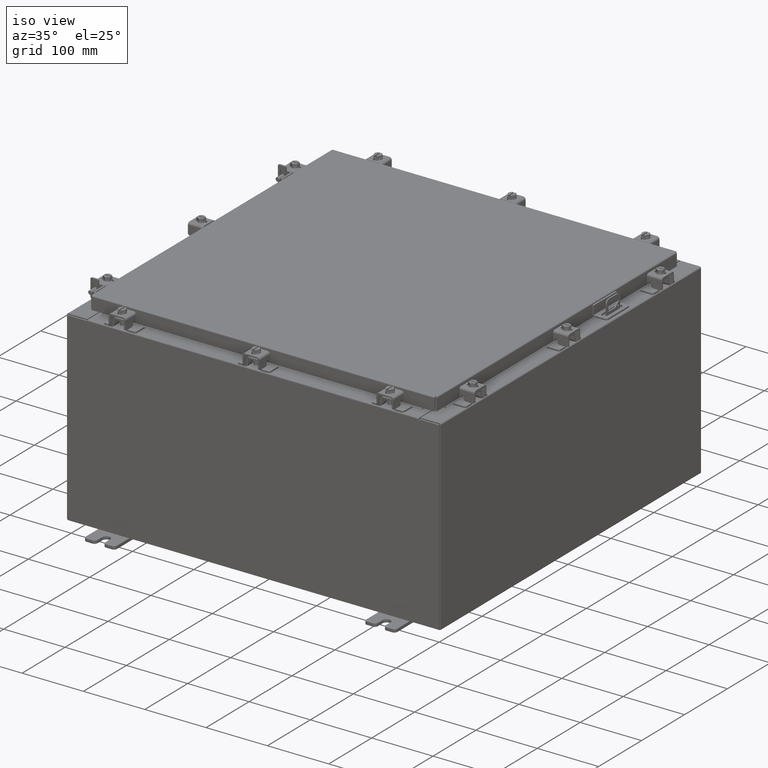
[diagram: clean part render]
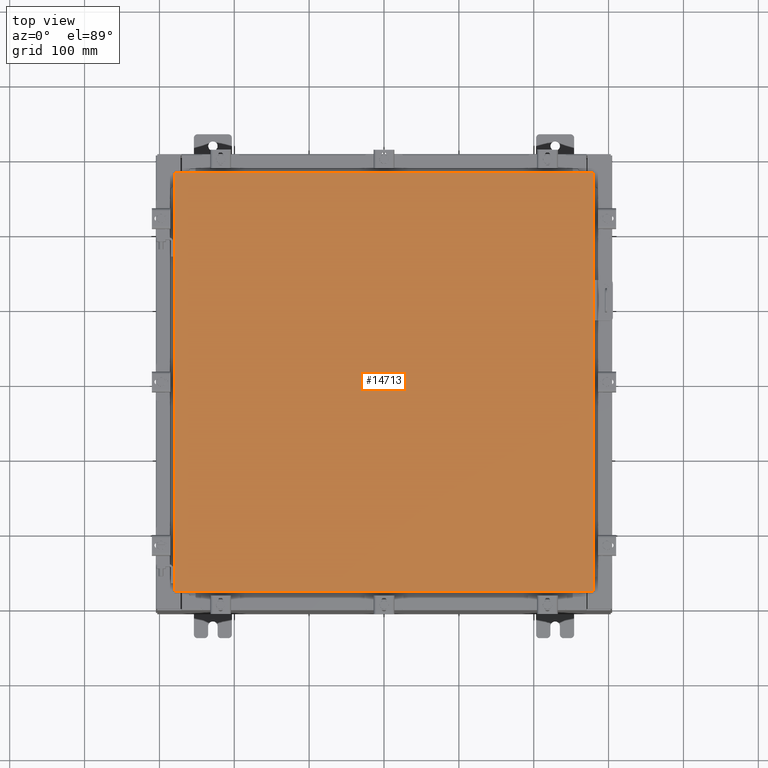
[diagram: tour spotlight — one face highlighted and labeled with its STEP entity id]
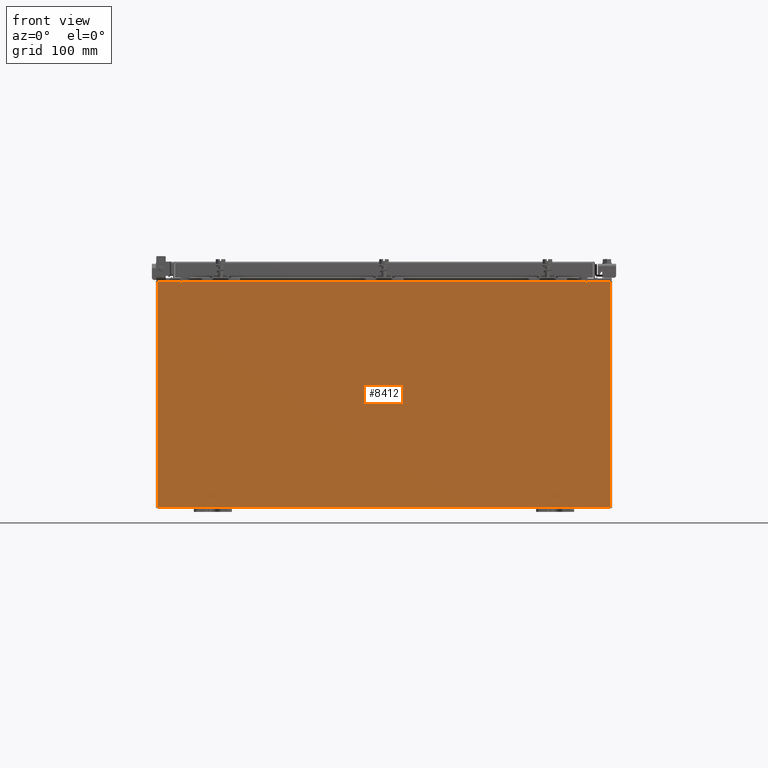
[diagram: tour spotlight — one face highlighted and labeled with its STEP entity id]
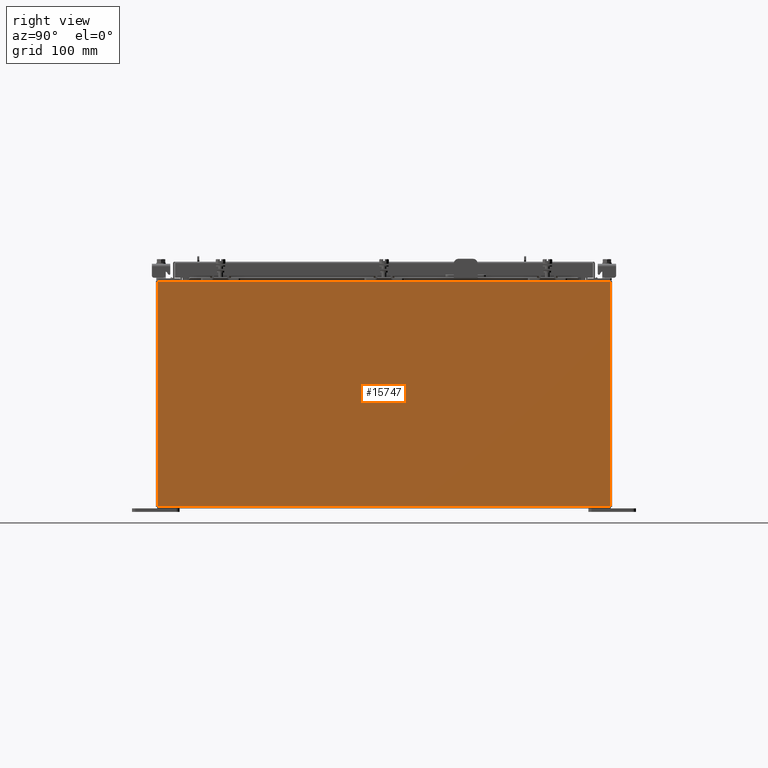
[diagram: tour spotlight — one face highlighted and labeled with its STEP entity id]
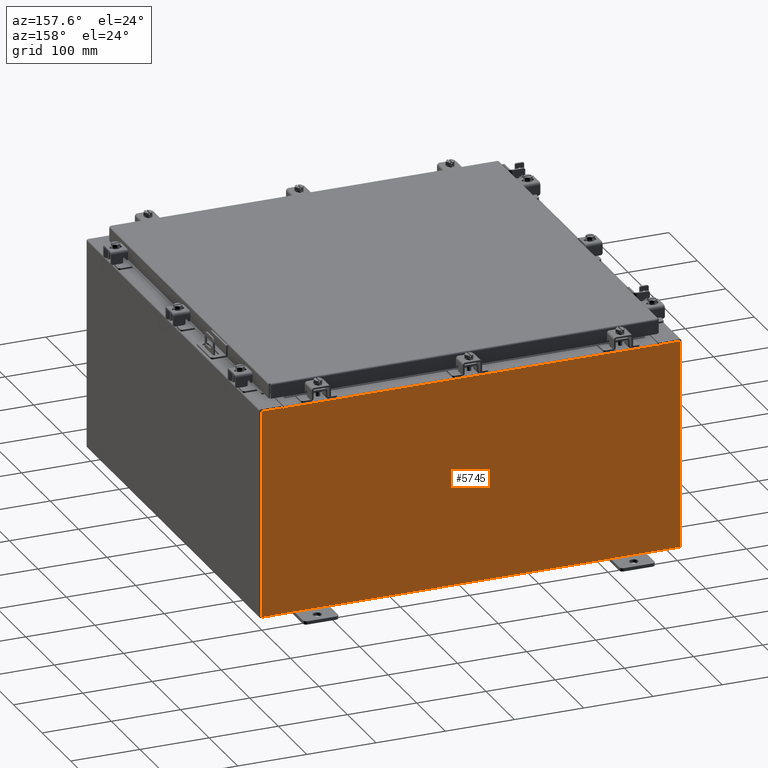
[diagram: tour spotlight — one face highlighted and labeled with its STEP entity id]
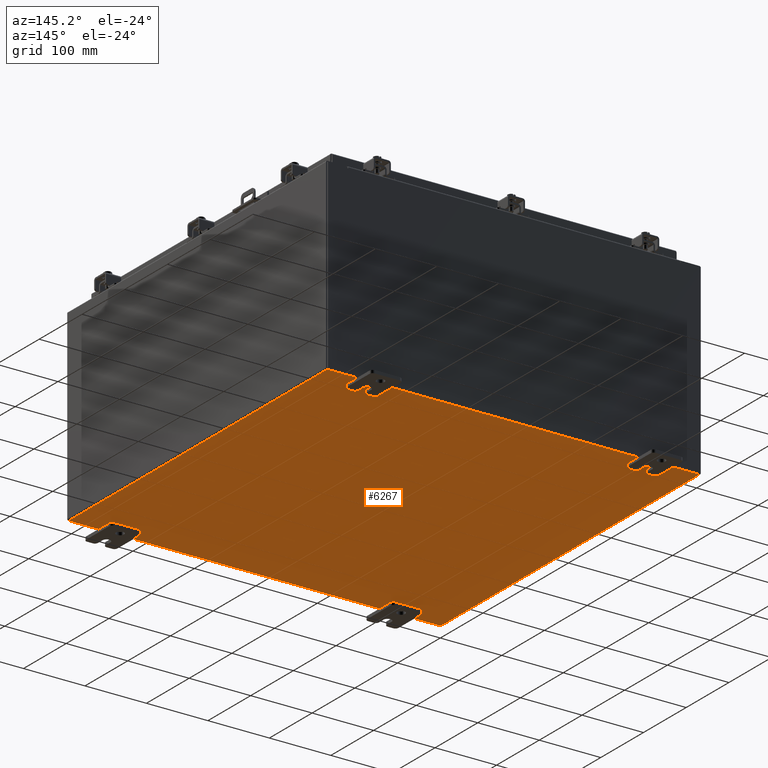
[diagram: tour spotlight — one face highlighted and labeled with its STEP entity id]
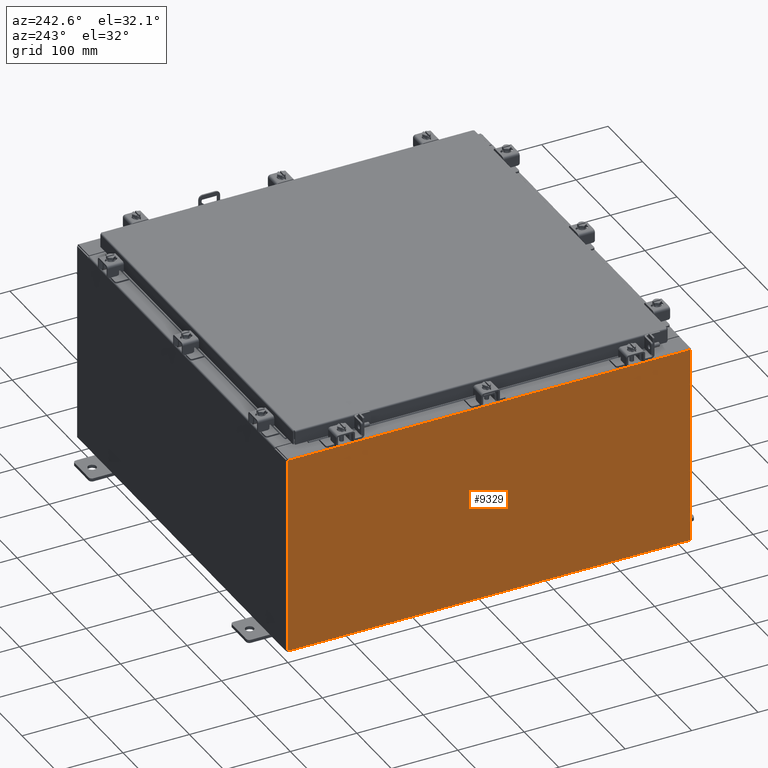
[diagram: tour spotlight — one face highlighted and labeled with its STEP entity id]
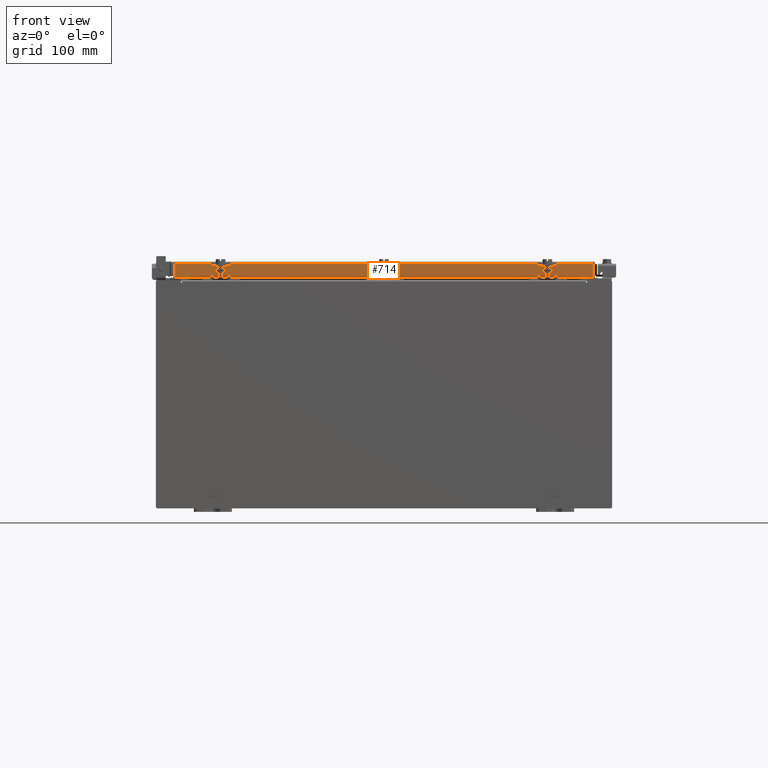
[diagram: tour spotlight — one face highlighted and labeled with its STEP entity id]
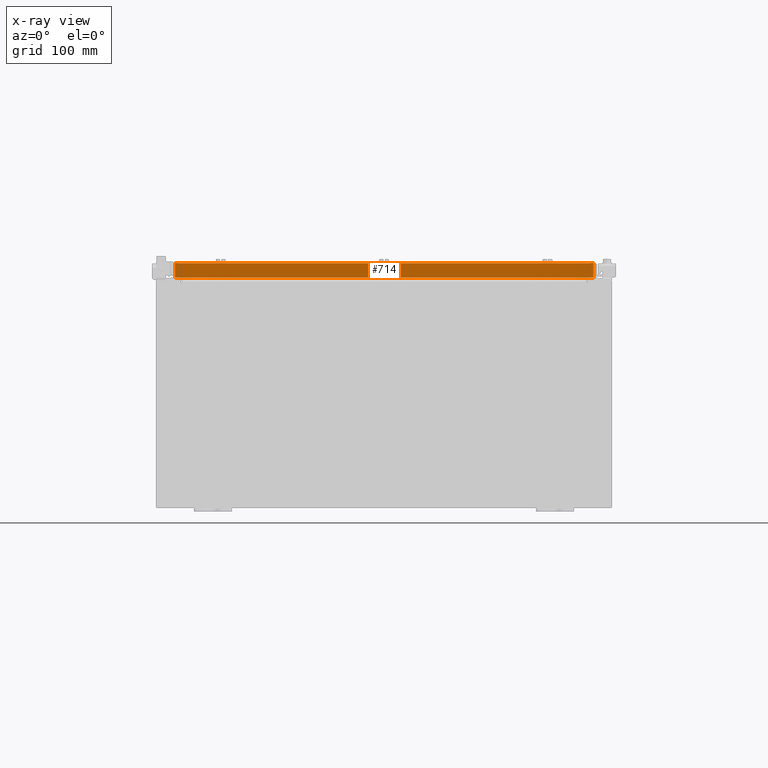
[diagram: x-ray of the same camera — body ghosted, this tour face saturated]
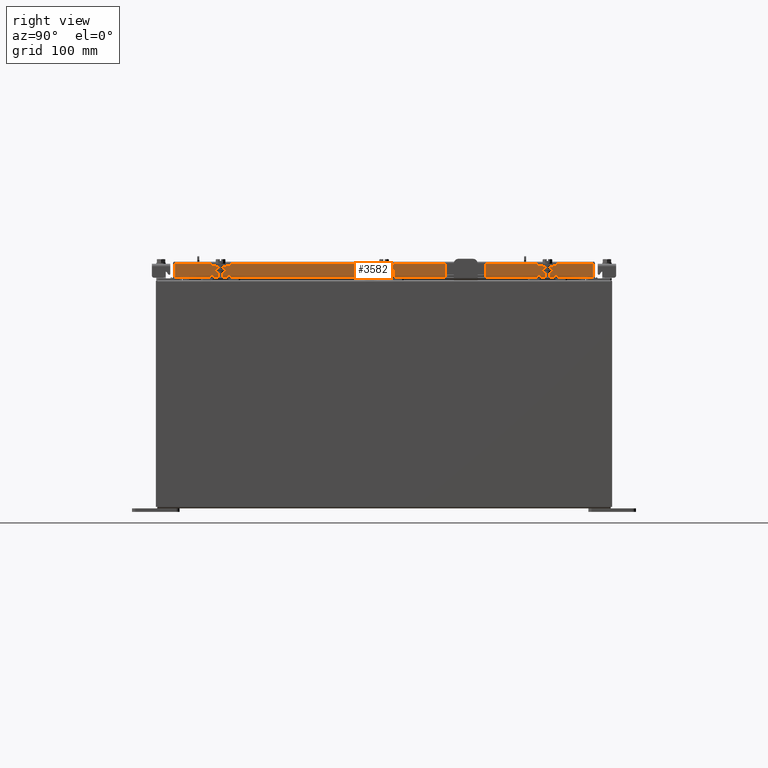
[diagram: tour spotlight — one face highlighted and labeled with its STEP entity id]
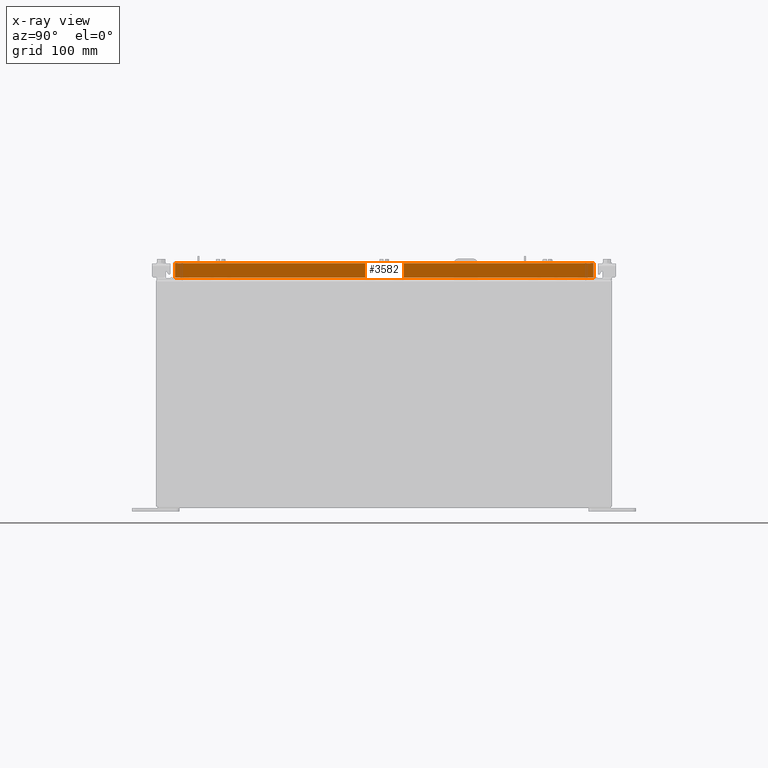
[diagram: x-ray of the same camera — body ghosted, this tour face saturated]
A machine part: a face-by-face anatomy tour. The part has 2018 B-rep faces; the first image is the clean iso view, then the 8 largest visible faces are spotlighted one at a time (largest first), each with its STEP entity span.

Face 1 — top view, entity #14713. In plain terms, the highlighted planar face has unit normal (0, 0, -1).
Definition (entity closure, byte-faithful):
#45 = DIRECTION ( 'NONE',  ( 0.0000000000000000000, 1.000000000000000000, 0.0000000000000000000 ) ) ;
#1031 = DIRECTION ( 'NONE',  ( 0.0000000000000000000, -1.000000000000000000, 0.0000000000000000000 ) ) ;
#1666 = ORIENTED_EDGE ( 'NONE', *, *, #2461, .T. ) ;
#1811 = CARTESIAN_POINT ( 'NONE',  ( 11.00630000000000000, 11.00630000000000000, 0.0000000000000000000 ) ) ;
#2257 = VECTOR ( 'NONE', #13594, 39.37007874015748100 ) ;
#2461 = EDGE_CURVE ( 'NONE', #12385, #13213, #9396, .T. ) ;
#2712 = DIRECTION ( 'NONE',  ( 0.0000000000000000000, 0.0000000000000000000, -1.000000000000000000 ) ) ;
#3831 = EDGE_CURVE ( 'NONE', #13213, #13131, #6925, .T. ) ;
#4807 = VECTOR ( 'NONE', #1031, 39.37007874015748100 ) ;
#5371 = CARTESIAN_POINT ( 'NONE',  ( 11.00630000000000000, -11.00630000000000000, 0.0000000000000000000 ) ) ;
#6925 = LINE ( 'NONE', #20543, #2257 ) ;
#7045 = CARTESIAN_POINT ( 'NONE',  ( -11.00630000000000000, 11.00630000000000000, 0.0000000000000000000 ) ) ;
#7500 = VECTOR ( 'NONE', #12225, 39.37007874015748100 ) ;
#7553 = FACE_OUTER_BOUND ( 'NONE', #9148, .T. ) ;
#7612 = VECTOR ( 'NONE', #45, 39.37007874015748100 ) ;
#7900 = CARTESIAN_POINT ( 'NONE',  ( 0.0000000000000000000, 0.0000000000000000000, 0.0000000000000000000 ) ) ;
#9148 = EDGE_LOOP ( 'NONE', ( #16859, #19043, #18407, #1666 ) ) ;
#9396 = LINE ( 'NONE', #20089, #4807 ) ;
#9687 = CARTESIAN_POINT ( 'NONE',  ( -11.00630000000000000, -11.00630000000000000, 0.0000000000000000000 ) ) ;
#12225 = DIRECTION ( 'NONE',  ( -1.000000000000000000, -0.0000000000000000000, -0.0000000000000000000 ) ) ;
#12385 = VERTEX_POINT ( 'NONE', #7045 ) ;
#13131 = VERTEX_POINT ( 'NONE', #18135 ) ;
#13213 = VERTEX_POINT ( 'NONE', #9687 ) ;
#13594 = DIRECTION ( 'NONE',  ( 1.000000000000000000, -0.0000000000000000000, -0.0000000000000000000 ) ) ;
#14713 = ADVANCED_FACE ( 'NONE', ( #7553 ), #16562, .F. ) ;
#14874 = DIRECTION ( 'NONE',  ( -1.000000000000000000, 0.0000000000000000000, -0.0000000000000000000 ) ) ;
#15907 = EDGE_CURVE ( 'NONE', #16195, #12385, #20297, .T. ) ;
#16195 = VERTEX_POINT ( 'NONE', #19925 ) ;
#16562 = PLANE ( 'NONE',  #17190 ) ;
#16859 = ORIENTED_EDGE ( 'NONE', *, *, #3831, .T. ) ;
#17190 = AXIS2_PLACEMENT_3D ( 'NONE', #7900, #2712, #14874 ) ;
#18135 = CARTESIAN_POINT ( 'NONE',  ( 11.00630000000000000, -11.00630000000000000, 0.0000000000000000000 ) ) ;
#18407 = ORIENTED_EDGE ( 'NONE', *, *, #15907, .T. ) ;
#19043 = ORIENTED_EDGE ( 'NONE', *, *, #22371, .T. ) ;
#19925 = CARTESIAN_POINT ( 'NONE',  ( 11.00630000000000000, 11.00630000000000000, 0.0000000000000000000 ) ) ;
#20089 = CARTESIAN_POINT ( 'NONE',  ( -11.00630000000000000, 11.00630000000000000, 0.0000000000000000000 ) ) ;
#20297 = LINE ( 'NONE', #1811, #7500 ) ;
#20543 = CARTESIAN_POINT ( 'NONE',  ( -11.00630000000000000, -11.00630000000000000, 0.0000000000000000000 ) ) ;
#22027 = LINE ( 'NONE', #5371, #7612 ) ;
#22371 = EDGE_CURVE ( 'NONE', #13131, #16195, #22027, .T. ) ;

Face 2 — front view, entity #8412. In plain terms, the highlighted planar face has unit normal (-0, 1, -0).
Definition (entity closure, byte-faithful):
#23 = LINE ( 'NONE', #4294, #18013 ) ;
#33 = DIRECTION ( 'NONE',  ( 0.0000000000000000000, 0.0000000000000000000, -1.000000000000000000 ) ) ;
#837 = DIRECTION ( 'NONE',  ( 0.0000000000000000000, 0.0000000000000000000, -1.000000000000000000 ) ) ;
#1018 = CARTESIAN_POINT ( 'NONE',  ( -10.63720000000000400, -1.707404996040164500E-016, 5.912300000000001000 ) ) ;
#1580 = VECTOR ( 'NONE', #8442, 39.37007874015748100 ) ;
#1871 = AXIS2_PLACEMENT_3D ( 'NONE', #11080, #12811, #2423 ) ;
#1987 = DIRECTION ( 'NONE',  ( 0.0000000000000000000, 0.0000000000000000000, -1.000000000000000000 ) ) ;
#2279 = CARTESIAN_POINT ( 'NONE',  ( 11.92530000000000000, 0.0000000000000000000, -5.925299999999999100 ) ) ;
#2423 = DIRECTION ( 'NONE',  ( 0.0000000000000000000, -0.0000000000000000000, -1.000000000000000000 ) ) ;
#2629 = AXIS2_PLACEMENT_3D ( 'NONE', #20642, #10165, #22363 ) ;
#3263 = CARTESIAN_POINT ( 'NONE',  ( 10.63720000000000400, 0.0000000000000000000, 5.874950000000001000 ) ) ;
#3425 = VERTEX_POINT ( 'NONE', #22534 ) ;
#3598 = CARTESIAN_POINT ( 'NONE',  ( -11.92530000000000000, 0.0000000000000000000, -5.925299999999999100 ) ) ;
#3870 = VECTOR ( 'NONE', #18885, 39.37007874015748100 ) ;
#3968 = ORIENTED_EDGE ( 'NONE', *, *, #11120, .F. ) ;
#4168 = CARTESIAN_POINT ( 'NONE',  ( -10.65587500000000200, 0.0000000000000000000, 5.874950000000001000 ) ) ;
#4294 = CARTESIAN_POINT ( 'NONE',  ( -10.63720000000000400, -0.0000000000000000000, 0.0000000000000000000 ) ) ;
#4309 = EDGE_CURVE ( 'NONE', #6710, #19245, #21305, .T. ) ;
#4337 = LINE ( 'NONE', #20375, #4900 ) ;
#4350 = CARTESIAN_POINT ( 'NONE',  ( 10.63720000000000400, 0.0000000000000000000, 5.912300000000001000 ) ) ;
#4425 = DIRECTION ( 'NONE',  ( 0.0000000000000000000, 0.0000000000000000000, 1.000000000000000000 ) ) ;
#4809 = EDGE_CURVE ( 'NONE', #18359, #14274, #13104, .T. ) ;
#4900 = VECTOR ( 'NONE', #15080, 39.37007874015748100 ) ;
#5342 = ORIENTED_EDGE ( 'NONE', *, *, #18497, .F. ) ;
#5441 = CARTESIAN_POINT ( 'NONE',  ( -11.92530000000000000, 0.0000000000000000000, 5.925300000000000000 ) ) ;
#5720 = EDGE_CURVE ( 'NONE', #13764, #15109, #6236, .T. ) ;
#5903 = CARTESIAN_POINT ( 'NONE',  ( -11.92530000000000000, 0.0000000000000000000, 5.925300000000000000 ) ) ;
#5953 = DIRECTION ( 'NONE',  ( 0.0000000000000000000, 0.0000000000000000000, -1.000000000000000000 ) ) ;
#6074 = VERTEX_POINT ( 'NONE', #9777 ) ;
#6236 = LINE ( 'NONE', #15331, #1580 ) ;
#6710 = VERTEX_POINT ( 'NONE', #3263 ) ;
#7220 = CARTESIAN_POINT ( 'NONE',  ( -10.63720000000000400, -1.707404996040164500E-016, 5.912300000000001000 ) ) ;
#7741 = EDGE_CURVE ( 'NONE', #15109, #19006, #21615, .T. ) ;
#8190 = EDGE_CURVE ( 'NONE', #14274, #13764, #9336, .T. ) ;
#8214 = ORIENTED_EDGE ( 'NONE', *, *, #4309, .F. ) ;
#8412 = ADVANCED_FACE ( 'NONE', ( #18876 ), #21512, .F. ) ;
#8442 = DIRECTION ( 'NONE',  ( -1.000000000000000000, -0.0000000000000000000, -0.0000000000000000000 ) ) ;
#8833 = VECTOR ( 'NONE', #1987, 39.37007874015748100 ) ;
#9006 = CARTESIAN_POINT ( 'NONE',  ( 10.67455000000000200, 0.0000000000000000000, 0.0000000000000000000 ) ) ;
#9285 = DIRECTION ( 'NONE',  ( -0.0000000000000000000, -0.0000000000000000000, 1.000000000000000000 ) ) ;
#9336 = LINE ( 'NONE', #13981, #18613 ) ;
#9648 = CARTESIAN_POINT ( 'NONE',  ( -10.67455000000000200, -0.0000000000000000000, 0.0000000000000000000 ) ) ;
#9736 = ORIENTED_EDGE ( 'NONE', *, *, #8190, .T. ) ;
#9777 = CARTESIAN_POINT ( 'NONE',  ( -10.67455000000000200, 0.0000000000000000000, 5.925300000000000000 ) ) ;
#9992 = EDGE_CURVE ( 'NONE', #18676, #12924, #19251, .T. ) ;
#10097 = CARTESIAN_POINT ( 'NONE',  ( 11.92530000000000000, 0.0000000000000000000, 5.925300000000001800 ) ) ;
#10165 = DIRECTION ( 'NONE',  ( -0.0000000000000000000, 1.000000000000000000, -0.0000000000000000000 ) ) ;
#10225 = CARTESIAN_POINT ( 'NONE',  ( -10.67455000000000200, 0.0000000000000000000, 5.874950000000001000 ) ) ;
#10416 = EDGE_CURVE ( 'NONE', #13227, #19245, #20855, .T. ) ;
#10937 = ORIENTED_EDGE ( 'NONE', *, *, #13326, .T. ) ;
#11080 = CARTESIAN_POINT ( 'NONE',  ( 0.0000000000000000000, 0.0000000000000000000, 0.0000000000000000000 ) ) ;
#11120 = EDGE_CURVE ( 'NONE', #18359, #3425, #18631, .T. ) ;
#11272 = DIRECTION ( 'NONE',  ( 0.0000000000000000000, 0.0000000000000000000, 1.000000000000000000 ) ) ;
#11552 = VECTOR ( 'NONE', #15940, 39.37007874015748100 ) ;
#12708 = CARTESIAN_POINT ( 'NONE',  ( 10.67455000000000200, 0.0000000000000000000, 5.925300000000001800 ) ) ;
#12811 = DIRECTION ( 'NONE',  ( 0.0000000000000000000, -1.000000000000000000, 0.0000000000000000000 ) ) ;
#12924 = VERTEX_POINT ( 'NONE', #10225 ) ;
#13104 = LINE ( 'NONE', #13692, #3870 ) ;
#13227 = VERTEX_POINT ( 'NONE', #1018 ) ;
#13326 = EDGE_CURVE ( 'NONE', #19006, #6074, #4337, .T. ) ;
#13655 = ORIENTED_EDGE ( 'NONE', *, *, #20670, .F. ) ;
#13692 = CARTESIAN_POINT ( 'NONE',  ( -11.92530000000000000, 0.0000000000000000000, 5.925300000000000000 ) ) ;
#13764 = VERTEX_POINT ( 'NONE', #2279 ) ;
#13981 = CARTESIAN_POINT ( 'NONE',  ( 11.92530000000000000, 0.0000000000000000000, 5.925300000000001800 ) ) ;
#14274 = VERTEX_POINT ( 'NONE', #10097 ) ;
#14702 = ORIENTED_EDGE ( 'NONE', *, *, #7741, .T. ) ;
#15080 = DIRECTION ( 'NONE',  ( 1.000000000000000000, 0.0000000000000000000, 4.581600452255731000E-017 ) ) ;
#15109 = VERTEX_POINT ( 'NONE', #3598 ) ;
#15331 = CARTESIAN_POINT ( 'NONE',  ( -11.92530000000000000, 0.0000000000000000000, -5.925299999999999100 ) ) ;
#15393 = ORIENTED_EDGE ( 'NONE', *, *, #15782, .F. ) ;
#15499 = VECTOR ( 'NONE', #4425, 39.37007874015748100 ) ;
#15782 = EDGE_CURVE ( 'NONE', #3425, #6710, #18936, .T. ) ;
#15940 = DIRECTION ( 'NONE',  ( 1.000000000000000000, 0.0000000000000000000, 0.0000000000000000000 ) ) ;
#16330 = DIRECTION ( 'NONE',  ( -0.0000000000000000000, 1.000000000000000000, -0.0000000000000000000 ) ) ;
#16539 = ORIENTED_EDGE ( 'NONE', *, *, #5720, .T. ) ;
#16597 = LINE ( 'NONE', #9648, #15499 ) ;
#16894 = CARTESIAN_POINT ( 'NONE',  ( -10.63720000000000400, -0.0000000000000000000, 5.874950000000001000 ) ) ;
#17217 = EDGE_LOOP ( 'NONE', ( #13655, #19308, #5342, #18646, #8214, #15393, #3968, #20899, #9736, #16539, #14702, #10937 ) ) ;
#17757 = VECTOR ( 'NONE', #11272, 39.37007874015748100 ) ;
#18013 = VECTOR ( 'NONE', #837, 39.37007874015748100 ) ;
#18274 = AXIS2_PLACEMENT_3D ( 'NONE', #4168, #16330, #5953 ) ;
#18359 = VERTEX_POINT ( 'NONE', #12708 ) ;
#18497 = EDGE_CURVE ( 'NONE', #13227, #18676, #23, .T. ) ;
#18613 = VECTOR ( 'NONE', #33, 39.37007874015748100 ) ;
#18631 = LINE ( 'NONE', #9006, #8833 ) ;
#18646 = ORIENTED_EDGE ( 'NONE', *, *, #10416, .T. ) ;
#18676 = VERTEX_POINT ( 'NONE', #16894 ) ;
#18876 = FACE_OUTER_BOUND ( 'NONE', #17217, .T. ) ;
#18885 = DIRECTION ( 'NONE',  ( 1.000000000000000000, 0.0000000000000000000, 4.581600452255731000E-017 ) ) ;
#18936 = CIRCLE ( 'NONE', #2629, 0.01867499999999949400 ) ;
#19006 = VERTEX_POINT ( 'NONE', #5441 ) ;
#19245 = VERTEX_POINT ( 'NONE', #4350 ) ;
#19251 = CIRCLE ( 'NONE', #18274, 0.01867499999999949400 ) ;
#19308 = ORIENTED_EDGE ( 'NONE', *, *, #9992, .F. ) ;
#20375 = CARTESIAN_POINT ( 'NONE',  ( -11.92530000000000000, 0.0000000000000000000, 5.925300000000000000 ) ) ;
#20642 = CARTESIAN_POINT ( 'NONE',  ( 10.65587500000000200, 0.0000000000000000000, 5.874950000000001000 ) ) ;
#20670 = EDGE_CURVE ( 'NONE', #12924, #6074, #16597, .T. ) ;
#20855 = LINE ( 'NONE', #7220, #11552 ) ;
#20899 = ORIENTED_EDGE ( 'NONE', *, *, #4809, .T. ) ;
#21086 = VECTOR ( 'NONE', #9285, 39.37007874015748100 ) ;
#21305 = LINE ( 'NONE', #21736, #17757 ) ;
#21512 = PLANE ( 'NONE',  #1871 ) ;
#21615 = LINE ( 'NONE', #5903, #21086 ) ;
#21736 = CARTESIAN_POINT ( 'NONE',  ( 10.63720000000000400, 0.0000000000000000000, 0.0000000000000000000 ) ) ;
#22363 = DIRECTION ( 'NONE',  ( 0.0000000000000000000, 0.0000000000000000000, -1.000000000000000000 ) ) ;
#22534 = CARTESIAN_POINT ( 'NONE',  ( 10.67455000000000200, 0.0000000000000000000, 5.874950000000001000 ) ) ;

Face 3 — right view, entity #15747. In plain terms, the highlighted planar face has unit normal (-1, 0, 0).
Definition (entity closure, byte-faithful):
#707 = LINE ( 'NONE', #3750, #5382 ) ;
#1004 = CARTESIAN_POINT ( 'NONE',  ( 12.00000000000004100, 11.92529999999999600, 11.83760000000000000 ) ) ;
#1284 = ORIENTED_EDGE ( 'NONE', *, *, #1936, .T. ) ;
#1936 = EDGE_CURVE ( 'NONE', #3182, #18567, #707, .T. ) ;
#2172 = VERTEX_POINT ( 'NONE', #8738 ) ;
#2521 = CARTESIAN_POINT ( 'NONE',  ( 11.99999999999999800, -11.92530000000000400, 0.01299999999999984700 ) ) ;
#2760 = ORIENTED_EDGE ( 'NONE', *, *, #17833, .T. ) ;
#2800 = VECTOR ( 'NONE', #9177, 39.37007874015748100 ) ;
#3047 = VECTOR ( 'NONE', #21935, 39.37007874015748100 ) ;
#3182 = VERTEX_POINT ( 'NONE', #13231 ) ;
#3750 = CARTESIAN_POINT ( 'NONE',  ( 11.99999999999999800, 11.92529999999999800, -3.985953138565242700E-014 ) ) ;
#4608 = EDGE_CURVE ( 'NONE', #18567, #2172, #16929, .T. ) ;
#5382 = VECTOR ( 'NONE', #15978, 39.37007874015748100 ) ;
#6129 = VECTOR ( 'NONE', #8140, 39.37007874015748100 ) ;
#6561 = CARTESIAN_POINT ( 'NONE',  ( 11.99999999999999800, 0.0000000000000000000, -4.204500978058384000E-014 ) ) ;
#6731 = EDGE_LOOP ( 'NONE', ( #9978, #2760, #20865, #1284 ) ) ;
#7462 = LINE ( 'NONE', #16027, #2800 ) ;
#8140 = DIRECTION ( 'NONE',  ( -0.0000000000000000000, -1.000000000000000000, -0.0000000000000000000 ) ) ;
#8738 = CARTESIAN_POINT ( 'NONE',  ( 12.00000000000004100, -11.92530000000000400, 11.83760000000000000 ) ) ;
#9117 = FACE_OUTER_BOUND ( 'NONE', #6731, .T. ) ;
#9177 = DIRECTION ( 'NONE',  ( -3.482016343714355500E-015, 0.0000000000000000000, -1.000000000000000000 ) ) ;
#9978 = ORIENTED_EDGE ( 'NONE', *, *, #4608, .T. ) ;
#10041 = PLANE ( 'NONE',  #20571 ) ;
#11251 = LINE ( 'NONE', #18609, #6129 ) ;
#11757 = DIRECTION ( 'NONE',  ( 3.482016343714355100E-015, 0.0000000000000000000, 1.000000000000000000 ) ) ;
#13231 = CARTESIAN_POINT ( 'NONE',  ( 11.99999999999999800, 11.92529999999999600, 0.01299999999999984700 ) ) ;
#15747 = ADVANCED_FACE ( 'NONE', ( #9117 ), #10041, .F. ) ;
#15978 = DIRECTION ( 'NONE',  ( 3.482016343714355500E-015, -1.832640180902292400E-016, 1.000000000000000000 ) ) ;
#16027 = CARTESIAN_POINT ( 'NONE',  ( 11.99999999999999800, -11.92530000000000400, -4.204500978058384000E-014 ) ) ;
#16228 = EDGE_CURVE ( 'NONE', #3182, #18489, #11251, .T. ) ;
#16929 = LINE ( 'NONE', #18436, #3047 ) ;
#17833 = EDGE_CURVE ( 'NONE', #2172, #18489, #7462, .T. ) ;
#18436 = CARTESIAN_POINT ( 'NONE',  ( 12.00000000000004100, 11.92529999999999800, 11.83760000000000000 ) ) ;
#18489 = VERTEX_POINT ( 'NONE', #2521 ) ;
#18567 = VERTEX_POINT ( 'NONE', #1004 ) ;
#18609 = CARTESIAN_POINT ( 'NONE',  ( 11.99999999999999800, -11.92530000000000400, 0.01299999999999984700 ) ) ;
#20571 = AXIS2_PLACEMENT_3D ( 'NONE', #6561, #22219, #11757 ) ;
#20865 = ORIENTED_EDGE ( 'NONE', *, *, #16228, .F. ) ;
#21935 = DIRECTION ( 'NONE',  ( -0.0000000000000000000, -1.000000000000000000, -0.0000000000000000000 ) ) ;
#22219 = DIRECTION ( 'NONE',  ( -1.000000000000000000, 0.0000000000000000000, 3.482016343714355100E-015 ) ) ;

Face 4 — auxiliary view, entity #5745. In plain terms, the highlighted planar face has unit normal (0, -1, 0).
Definition (entity closure, byte-faithful):
#342 = CIRCLE ( 'NONE', #689, 0.01867499999999949400 ) ;
#629 = ORIENTED_EDGE ( 'NONE', *, *, #2146, .F. ) ;
#667 = EDGE_CURVE ( 'NONE', #10844, #5073, #3616, .T. ) ;
#689 = AXIS2_PLACEMENT_3D ( 'NONE', #12882, #2490, #14669 ) ;
#858 = ORIENTED_EDGE ( 'NONE', *, *, #4667, .T. ) ;
#1093 = ORIENTED_EDGE ( 'NONE', *, *, #17906, .T. ) ;
#1141 = EDGE_CURVE ( 'NONE', #9205, #6570, #19146, .T. ) ;
#1416 = ORIENTED_EDGE ( 'NONE', *, *, #4336, .F. ) ;
#1622 = EDGE_LOOP ( 'NONE', ( #2343, #15262, #629, #5111, #15889, #22186, #1416, #10173, #858, #3904, #1093, #15875 ) ) ;
#2146 = EDGE_CURVE ( 'NONE', #11572, #20900, #6732, .T. ) ;
#2166 = CARTESIAN_POINT ( 'NONE',  ( 10.63720000000000400, 0.0000000000000000000, 5.912300000000001000 ) ) ;
#2343 = ORIENTED_EDGE ( 'NONE', *, *, #20911, .F. ) ;
#2490 = DIRECTION ( 'NONE',  ( -0.0000000000000000000, 1.000000000000000000, -0.0000000000000000000 ) ) ;
#2788 = VECTOR ( 'NONE', #19986, 39.37007874015748100 ) ;
#2826 = CARTESIAN_POINT ( 'NONE',  ( 11.92530000000000000, 0.0000000000000000000, -5.925299999999999100 ) ) ;
#2949 = DIRECTION ( 'NONE',  ( -1.000000000000000000, -0.0000000000000000000, -0.0000000000000000000 ) ) ;
#3191 = EDGE_CURVE ( 'NONE', #20621, #8260, #15361, .T. ) ;
#3247 = PLANE ( 'NONE',  #19061 ) ;
#3343 = LINE ( 'NONE', #9535, #2788 ) ;
#3485 = DIRECTION ( 'NONE',  ( 0.0000000000000000000, 0.0000000000000000000, -1.000000000000000000 ) ) ;
#3616 = CIRCLE ( 'NONE', #4535, 0.01867499999999949400 ) ;
#3904 = ORIENTED_EDGE ( 'NONE', *, *, #1141, .T. ) ;
#4336 = EDGE_CURVE ( 'NONE', #20621, #10844, #3343, .T. ) ;
#4535 = AXIS2_PLACEMENT_3D ( 'NONE', #5715, #13971, #17344 ) ;
#4573 = DIRECTION ( 'NONE',  ( 1.000000000000000000, 0.0000000000000000000, 4.581600452255731000E-017 ) ) ;
#4667 = EDGE_CURVE ( 'NONE', #8260, #9205, #20491, .T. ) ;
#5014 = DIRECTION ( 'NONE',  ( 0.0000000000000000000, -1.000000000000000000, 0.0000000000000000000 ) ) ;
#5073 = VERTEX_POINT ( 'NONE', #22446 ) ;
#5111 = ORIENTED_EDGE ( 'NONE', *, *, #6404, .T. ) ;
#5168 = DIRECTION ( 'NONE',  ( 0.0000000000000000000, 0.0000000000000000000, 1.000000000000000000 ) ) ;
#5715 = CARTESIAN_POINT ( 'NONE',  ( 10.65587500000000200, 0.0000000000000000000, 5.874950000000001000 ) ) ;
#5745 = ADVANCED_FACE ( 'NONE', ( #19573 ), #3247, .F. ) ;
#6282 = VERTEX_POINT ( 'NONE', #11959 ) ;
#6404 = EDGE_CURVE ( 'NONE', #11572, #16593, #21965, .T. ) ;
#6439 = DIRECTION ( 'NONE',  ( 0.0000000000000000000, 0.0000000000000000000, -1.000000000000000000 ) ) ;
#6570 = VERTEX_POINT ( 'NONE', #7492 ) ;
#6732 = LINE ( 'NONE', #17406, #10776 ) ;
#7461 = LINE ( 'NONE', #9719, #15592 ) ;
#7492 = CARTESIAN_POINT ( 'NONE',  ( -11.92530000000000000, 0.0000000000000000000, -5.925299999999999100 ) ) ;
#7629 = VECTOR ( 'NONE', #17187, 39.37007874015748100 ) ;
#7829 = CARTESIAN_POINT ( 'NONE',  ( -11.92530000000000000, 0.0000000000000000000, 5.925300000000000000 ) ) ;
#8260 = VERTEX_POINT ( 'NONE', #8983 ) ;
#8439 = EDGE_CURVE ( 'NONE', #20900, #22480, #342, .T. ) ;
#8563 = CARTESIAN_POINT ( 'NONE',  ( 10.63720000000000400, 0.0000000000000000000, 0.0000000000000000000 ) ) ;
#8594 = EDGE_CURVE ( 'NONE', #6282, #14859, #7461, .T. ) ;
#8983 = CARTESIAN_POINT ( 'NONE',  ( 11.92530000000000000, 0.0000000000000000000, 5.925300000000001800 ) ) ;
#9205 = VERTEX_POINT ( 'NONE', #2826 ) ;
#9535 = CARTESIAN_POINT ( 'NONE',  ( 10.67455000000000200, 0.0000000000000000000, 0.0000000000000000000 ) ) ;
#9719 = CARTESIAN_POINT ( 'NONE',  ( -11.92530000000000000, 0.0000000000000000000, 5.925300000000000000 ) ) ;
#9807 = DIRECTION ( 'NONE',  ( 1.000000000000000000, 0.0000000000000000000, 4.581600452255731000E-017 ) ) ;
#10173 = ORIENTED_EDGE ( 'NONE', *, *, #3191, .T. ) ;
#10425 = VECTOR ( 'NONE', #13036, 39.37007874015748100 ) ;
#10776 = VECTOR ( 'NONE', #3485, 39.37007874015748100 ) ;
#10844 = VERTEX_POINT ( 'NONE', #22173 ) ;
#11419 = LINE ( 'NONE', #8563, #21789 ) ;
#11572 = VERTEX_POINT ( 'NONE', #21966 ) ;
#11727 = CARTESIAN_POINT ( 'NONE',  ( -10.67455000000000200, 0.0000000000000000000, 5.925300000000000000 ) ) ;
#11925 = CARTESIAN_POINT ( 'NONE',  ( -10.63720000000000400, -0.0000000000000000000, 5.874950000000001000 ) ) ;
#11959 = CARTESIAN_POINT ( 'NONE',  ( -11.92530000000000000, 0.0000000000000000000, 5.925300000000000000 ) ) ;
#12882 = CARTESIAN_POINT ( 'NONE',  ( -10.65587500000000200, 0.0000000000000000000, 5.874950000000001000 ) ) ;
#12892 = CARTESIAN_POINT ( 'NONE',  ( -11.92530000000000000, 0.0000000000000000000, -5.925299999999999100 ) ) ;
#13036 = DIRECTION ( 'NONE',  ( -0.0000000000000000000, -0.0000000000000000000, 1.000000000000000000 ) ) ;
#13585 = CARTESIAN_POINT ( 'NONE',  ( 0.0000000000000000000, 0.0000000000000000000, 0.0000000000000000000 ) ) ;
#13971 = DIRECTION ( 'NONE',  ( -0.0000000000000000000, 1.000000000000000000, -0.0000000000000000000 ) ) ;
#14483 = VECTOR ( 'NONE', #2949, 39.37007874015748100 ) ;
#14669 = DIRECTION ( 'NONE',  ( 0.0000000000000000000, 0.0000000000000000000, -1.000000000000000000 ) ) ;
#14859 = VERTEX_POINT ( 'NONE', #11727 ) ;
#15262 = ORIENTED_EDGE ( 'NONE', *, *, #8439, .F. ) ;
#15300 = VECTOR ( 'NONE', #6439, 39.37007874015748100 ) ;
#15361 = LINE ( 'NONE', #20262, #18911 ) ;
#15450 = CARTESIAN_POINT ( 'NONE',  ( -10.67455000000000200, -0.0000000000000000000, 0.0000000000000000000 ) ) ;
#15592 = VECTOR ( 'NONE', #4573, 39.37007874015748100 ) ;
#15875 = ORIENTED_EDGE ( 'NONE', *, *, #8594, .T. ) ;
#15889 = ORIENTED_EDGE ( 'NONE', *, *, #20122, .F. ) ;
#16593 = VERTEX_POINT ( 'NONE', #2166 ) ;
#17172 = DIRECTION ( 'NONE',  ( 0.0000000000000000000, -0.0000000000000000000, -1.000000000000000000 ) ) ;
#17187 = DIRECTION ( 'NONE',  ( 0.0000000000000000000, 0.0000000000000000000, 1.000000000000000000 ) ) ;
#17344 = DIRECTION ( 'NONE',  ( 0.0000000000000000000, 0.0000000000000000000, -1.000000000000000000 ) ) ;
#17401 = LINE ( 'NONE', #15450, #7629 ) ;
#17406 = CARTESIAN_POINT ( 'NONE',  ( -10.63720000000000400, -0.0000000000000000000, 0.0000000000000000000 ) ) ;
#17510 = CARTESIAN_POINT ( 'NONE',  ( -10.63720000000000400, -1.707404996040164500E-016, 5.912300000000001000 ) ) ;
#17906 = EDGE_CURVE ( 'NONE', #6570, #6282, #19699, .T. ) ;
#18190 = CARTESIAN_POINT ( 'NONE',  ( 10.67455000000000200, 0.0000000000000000000, 5.925300000000001800 ) ) ;
#18911 = VECTOR ( 'NONE', #9807, 39.37007874015748100 ) ;
#19061 = AXIS2_PLACEMENT_3D ( 'NONE', #13585, #5014, #17172 ) ;
#19146 = LINE ( 'NONE', #12892, #14483 ) ;
#19305 = DIRECTION ( 'NONE',  ( 1.000000000000000000, 0.0000000000000000000, 0.0000000000000000000 ) ) ;
#19573 = FACE_OUTER_BOUND ( 'NONE', #1622, .T. ) ;
#19699 = LINE ( 'NONE', #7829, #10425 ) ;
#19986 = DIRECTION ( 'NONE',  ( 0.0000000000000000000, 0.0000000000000000000, -1.000000000000000000 ) ) ;
#20122 = EDGE_CURVE ( 'NONE', #5073, #16593, #11419, .T. ) ;
#20262 = CARTESIAN_POINT ( 'NONE',  ( -11.92530000000000000, 0.0000000000000000000, 5.925300000000000000 ) ) ;
#20491 = LINE ( 'NONE', #22026, #15300 ) ;
#20621 = VERTEX_POINT ( 'NONE', #18190 ) ;
#20900 = VERTEX_POINT ( 'NONE', #11925 ) ;
#20911 = EDGE_CURVE ( 'NONE', #22480, #14859, #17401, .T. ) ;
#21414 = VECTOR ( 'NONE', #19305, 39.37007874015748100 ) ;
#21460 = CARTESIAN_POINT ( 'NONE',  ( -10.67455000000000200, 0.0000000000000000000, 5.874950000000001000 ) ) ;
#21789 = VECTOR ( 'NONE', #5168, 39.37007874015748100 ) ;
#21965 = LINE ( 'NONE', #17510, #21414 ) ;
#21966 = CARTESIAN_POINT ( 'NONE',  ( -10.63720000000000400, -1.707404996040164500E-016, 5.912300000000001000 ) ) ;
#22026 = CARTESIAN_POINT ( 'NONE',  ( 11.92530000000000000, 0.0000000000000000000, 5.925300000000001800 ) ) ;
#22173 = CARTESIAN_POINT ( 'NONE',  ( 10.67455000000000200, 0.0000000000000000000, 5.874950000000001000 ) ) ;
#22186 = ORIENTED_EDGE ( 'NONE', *, *, #667, .F. ) ;
#22446 = CARTESIAN_POINT ( 'NONE',  ( 10.63720000000000400, 0.0000000000000000000, 5.874950000000001000 ) ) ;
#22480 = VERTEX_POINT ( 'NONE', #21460 ) ;

Face 5 — auxiliary view, entity #6267. In plain terms, the highlighted planar face has unit normal (0, 0, -1).
Definition (entity closure, byte-faithful):
#321 = VERTEX_POINT ( 'NONE', #13281 ) ;
#587 = ORIENTED_EDGE ( 'NONE', *, *, #11296, .F. ) ;
#1781 = LINE ( 'NONE', #19628, #18661 ) ;
#2066 = EDGE_LOOP ( 'NONE', ( #587, #3394, #15447, #5155 ) ) ;
#2430 = VECTOR ( 'NONE', #5908, 39.37007874015748100 ) ;
#2563 = AXIS2_PLACEMENT_3D ( 'NONE', #18898, #8488, #20675 ) ;
#2911 = VECTOR ( 'NONE', #5208, 39.37007874015748100 ) ;
#3394 = ORIENTED_EDGE ( 'NONE', *, *, #14790, .T. ) ;
#4365 = CARTESIAN_POINT ( 'NONE',  ( 11.91229999999999800, 11.92529999999999600, -0.07469999999999994700 ) ) ;
#4456 = CARTESIAN_POINT ( 'NONE',  ( -11.91230000000000400, -11.92530000000000000, -0.07469999999999994700 ) ) ;
#5080 = EDGE_CURVE ( 'NONE', #13892, #16179, #7569, .T. ) ;
#5155 = ORIENTED_EDGE ( 'NONE', *, *, #5080, .T. ) ;
#5208 = DIRECTION ( 'NONE',  ( -0.0000000000000000000, -1.000000000000000000, -0.0000000000000000000 ) ) ;
#5908 = DIRECTION ( 'NONE',  ( -1.000000000000000000, -0.0000000000000000000, -0.0000000000000000000 ) ) ;
#6267 = ADVANCED_FACE ( 'NONE', ( #14876 ), #6758, .T. ) ;
#6467 = CARTESIAN_POINT ( 'NONE',  ( -11.91230000000000400, -11.92530000000000400, -0.07469999999999994700 ) ) ;
#6758 = PLANE ( 'NONE',  #2563 ) ;
#7015 = VECTOR ( 'NONE', #22106, 39.37007874015748100 ) ;
#7456 = DIRECTION ( 'NONE',  ( 1.000000000000000000, 0.0000000000000000000, 0.0000000000000000000 ) ) ;
#7569 = LINE ( 'NONE', #19050, #2911 ) ;
#8488 = DIRECTION ( 'NONE',  ( 0.0000000000000000000, 0.0000000000000000000, -1.000000000000000000 ) ) ;
#11296 = EDGE_CURVE ( 'NONE', #13198, #16179, #1781, .T. ) ;
#12873 = CARTESIAN_POINT ( 'NONE',  ( 11.91229999999998900, -11.92530000000000400, -0.07470000000000000300 ) ) ;
#13198 = VERTEX_POINT ( 'NONE', #4456 ) ;
#13281 = CARTESIAN_POINT ( 'NONE',  ( -11.91230000000000400, 11.92529999999999800, -0.07470000000000000300 ) ) ;
#13892 = VERTEX_POINT ( 'NONE', #4365 ) ;
#14790 = EDGE_CURVE ( 'NONE', #13198, #321, #19803, .T. ) ;
#14876 = FACE_OUTER_BOUND ( 'NONE', #2066, .T. ) ;
#15447 = ORIENTED_EDGE ( 'NONE', *, *, #21813, .F. ) ;
#16179 = VERTEX_POINT ( 'NONE', #12873 ) ;
#16291 = CARTESIAN_POINT ( 'NONE',  ( -12.00000000000000400, 11.92529999999999800, -0.07470000000000000300 ) ) ;
#16295 = LINE ( 'NONE', #16291, #2430 ) ;
#18661 = VECTOR ( 'NONE', #7456, 39.37007874015748100 ) ;
#18898 = CARTESIAN_POINT ( 'NONE',  ( 0.0000000000000000000, 0.0000000000000000000, -0.07470000000000000300 ) ) ;
#19050 = CARTESIAN_POINT ( 'NONE',  ( 11.91229999999999800, 11.92529999999999800, -0.07469999999999994700 ) ) ;
#19628 = CARTESIAN_POINT ( 'NONE',  ( -12.00000000000000400, -11.92530000000000400, -0.07470000000000000300 ) ) ;
#19803 = LINE ( 'NONE', #6467, #7015 ) ;
#20675 = DIRECTION ( 'NONE',  ( -1.000000000000000000, 0.0000000000000000000, -0.0000000000000000000 ) ) ;
#21813 = EDGE_CURVE ( 'NONE', #13892, #321, #16295, .T. ) ;
#22106 = DIRECTION ( 'NONE',  ( -0.0000000000000000000, 1.000000000000000000, -0.0000000000000000000 ) ) ;

Face 6 — auxiliary view, entity #9329. In plain terms, the highlighted planar face has unit normal (1, 0, 0).
Definition (entity closure, byte-faithful):
#197 = EDGE_CURVE ( 'NONE', #1194, #10479, #15883, .T. ) ;
#703 = CARTESIAN_POINT ( 'NONE',  ( -12.00000000000000400, 11.92529999999999800, 0.01299999999999984700 ) ) ;
#1194 = VERTEX_POINT ( 'NONE', #17104 ) ;
#1998 = VECTOR ( 'NONE', #11075, 39.37007874015748100 ) ;
#2086 = VECTOR ( 'NONE', #17766, 39.37007874015748100 ) ;
#3224 = PLANE ( 'NONE',  #12152 ) ;
#3467 = FACE_OUTER_BOUND ( 'NONE', #8201, .T. ) ;
#3576 = EDGE_CURVE ( 'NONE', #1194, #9144, #11785, .T. ) ;
#4990 = DIRECTION ( 'NONE',  ( 1.000000000000000000, 0.0000000000000000000, 3.482016343714355100E-015 ) ) ;
#7241 = DIRECTION ( 'NONE',  ( 3.482016343714355500E-015, 0.0000000000000000000, -1.000000000000000000 ) ) ;
#8060 = ORIENTED_EDGE ( 'NONE', *, *, #14500, .T. ) ;
#8201 = EDGE_LOOP ( 'NONE', ( #8060, #10109, #15337, #12594 ) ) ;
#9144 = VERTEX_POINT ( 'NONE', #703 ) ;
#9329 = ADVANCED_FACE ( 'NONE', ( #3467 ), #3224, .F. ) ;
#9834 = EDGE_CURVE ( 'NONE', #16923, #9144, #12141, .T. ) ;
#9902 = CARTESIAN_POINT ( 'NONE',  ( -12.00000000000004400, 11.92529999999999800, 11.83760000000000000 ) ) ;
#10109 = ORIENTED_EDGE ( 'NONE', *, *, #9834, .T. ) ;
#10479 = VERTEX_POINT ( 'NONE', #10763 ) ;
#10763 = CARTESIAN_POINT ( 'NONE',  ( -12.00000000000004400, -11.92530000000000000, 11.83760000000000000 ) ) ;
#11075 = DIRECTION ( 'NONE',  ( -3.482016343714355500E-015, 0.0000000000000000000, 1.000000000000000000 ) ) ;
#11785 = LINE ( 'NONE', #16526, #20539 ) ;
#12141 = LINE ( 'NONE', #19416, #20883 ) ;
#12152 = AXIS2_PLACEMENT_3D ( 'NONE', #15387, #4990, #17146 ) ;
#12594 = ORIENTED_EDGE ( 'NONE', *, *, #197, .T. ) ;
#13012 = DIRECTION ( 'NONE',  ( -0.0000000000000000000, 1.000000000000000000, -0.0000000000000000000 ) ) ;
#14500 = EDGE_CURVE ( 'NONE', #10479, #16923, #16525, .T. ) ;
#15337 = ORIENTED_EDGE ( 'NONE', *, *, #3576, .F. ) ;
#15387 = CARTESIAN_POINT ( 'NONE',  ( -12.00000000000000400, 0.0000000000000000000, -4.204500978058385200E-014 ) ) ;
#15883 = LINE ( 'NONE', #22137, #1998 ) ;
#16525 = LINE ( 'NONE', #21223, #2086 ) ;
#16526 = CARTESIAN_POINT ( 'NONE',  ( -12.00000000000000400, 11.92529999999999800, 0.01299999999999984700 ) ) ;
#16923 = VERTEX_POINT ( 'NONE', #9902 ) ;
#17104 = CARTESIAN_POINT ( 'NONE',  ( -12.00000000000000400, -11.92530000000000000, 0.01299999999999984700 ) ) ;
#17146 = DIRECTION ( 'NONE',  ( 3.482016343714355100E-015, 0.0000000000000000000, -1.000000000000000000 ) ) ;
#17766 = DIRECTION ( 'NONE',  ( 0.0000000000000000000, 1.000000000000000000, 0.0000000000000000000 ) ) ;
#19416 = CARTESIAN_POINT ( 'NONE',  ( -12.00000000000000400, 11.92529999999999800, -4.204500978058385200E-014 ) ) ;
#20539 = VECTOR ( 'NONE', #13012, 39.37007874015748100 ) ;
#20883 = VECTOR ( 'NONE', #7241, 39.37007874015748100 ) ;
#21223 = CARTESIAN_POINT ( 'NONE',  ( -12.00000000000004400, -11.92530000000000400, 11.83760000000000000 ) ) ;
#22137 = CARTESIAN_POINT ( 'NONE',  ( -12.00000000000000400, -11.92530000000000400, -4.204500978058385200E-014 ) ) ;

Face 7 — front view, entity #714. An x-ray twin of the same camera follows (body ghosted, this face saturated) — the face is partly hidden behind the body. In plain terms, the highlighted planar face has unit normal (-0, 1, -0).
Definition (entity closure, byte-faithful):
#462 = LINE ( 'NONE', #13296, #22548 ) ;
#714 = ADVANCED_FACE ( 'NONE', ( #16408 ), #19042, .F. ) ;
#793 = CARTESIAN_POINT ( 'NONE',  ( -11.00515786437626400, -11.09400000000000100, -0.8499999999999977600 ) ) ;
#1319 = CARTESIAN_POINT ( 'NONE',  ( -10.25515786437626400, -11.09399999999999400, -0.8500000000000020900 ) ) ;
#1582 = LINE ( 'NONE', #18321, #6237 ) ;
#2398 = VERTEX_POINT ( 'NONE', #793 ) ;
#2812 = VECTOR ( 'NONE', #8314, 39.37007874015748100 ) ;
#3138 = DIRECTION ( 'NONE',  ( -1.000000000000000000, 4.379057701015054300E-047, 1.231227687788112800E-016 ) ) ;
#4938 = CARTESIAN_POINT ( 'NONE',  ( 11.00515786437626700, -11.09400000000000100, -0.8499999999999999800 ) ) ;
#6188 = ORIENTED_EDGE ( 'NONE', *, *, #18649, .T. ) ;
#6196 = DIRECTION ( 'NONE',  ( -1.000000000000000000, 0.0000000000000000000, 0.0000000000000000000 ) ) ;
#6237 = VECTOR ( 'NONE', #6196, 39.37007874015748100 ) ;
#6253 = DIRECTION ( 'NONE',  ( 0.0000000000000000000, 2.818880942772360100E-015, 1.000000000000000000 ) ) ;
#6359 = VERTEX_POINT ( 'NONE', #6979 ) ;
#6510 = CARTESIAN_POINT ( 'NONE',  ( 11.00515786437626700, -11.09399999999999900, -0.07470000000000015500 ) ) ;
#6934 = EDGE_CURVE ( 'NONE', #21537, #6359, #9140, .T. ) ;
#6979 = CARTESIAN_POINT ( 'NONE',  ( 10.25515786437626400, -11.09399999999999400, -0.8500000000000020900 ) ) ;
#7159 = VECTOR ( 'NONE', #20354, 39.37007874015748100 ) ;
#7748 = VERTEX_POINT ( 'NONE', #14628 ) ;
#8026 = EDGE_CURVE ( 'NONE', #17536, #21537, #21332, .T. ) ;
#8314 = DIRECTION ( 'NONE',  ( -0.0000000000000000000, -2.818880942772360100E-015, -1.000000000000000000 ) ) ;
#8365 = ORIENTED_EDGE ( 'NONE', *, *, #14042, .F. ) ;
#8969 = DIRECTION ( 'NONE',  ( -1.000000000000000000, 4.379057701015054300E-047, 1.231227687788112800E-016 ) ) ;
#9140 = LINE ( 'NONE', #19396, #21934 ) ;
#9304 = EDGE_CURVE ( 'NONE', #22100, #2398, #12173, .T. ) ;
#9962 = DIRECTION ( 'NONE',  ( -3.470684265319587400E-031, 1.000000000000000000, -2.818880942772360100E-015 ) ) ;
#10187 = ORIENTED_EDGE ( 'NONE', *, *, #8026, .F. ) ;
#10346 = AXIS2_PLACEMENT_3D ( 'NONE', #16786, #9962, #6253 ) ;
#12173 = LINE ( 'NONE', #15310, #20907 ) ;
#13296 = CARTESIAN_POINT ( 'NONE',  ( 11.09399999999999800, -11.09399999999999900, -0.08770000000000026400 ) ) ;
#13593 = CARTESIAN_POINT ( 'NONE',  ( 11.00515786437626700, -11.09399999999999900, -0.08770000000000026400 ) ) ;
#14042 = EDGE_CURVE ( 'NONE', #6359, #22100, #1582, .T. ) ;
#14120 = EDGE_CURVE ( 'NONE', #7748, #17536, #462, .T. ) ;
#14551 = ORIENTED_EDGE ( 'NONE', *, *, #14120, .F. ) ;
#14628 = CARTESIAN_POINT ( 'NONE',  ( -11.00515786437626400, -11.09399999999999900, -0.08770000000000026400 ) ) ;
#15038 = DIRECTION ( 'NONE',  ( 1.000000000000000000, 3.470684265319588300E-031, -9.460278716967662300E-046 ) ) ;
#15310 = CARTESIAN_POINT ( 'NONE',  ( 11.09399999999999800, -11.09400000000000100, -0.8499999999999999800 ) ) ;
#15673 = ORIENTED_EDGE ( 'NONE', *, *, #6934, .F. ) ;
#15831 = LINE ( 'NONE', #16740, #7159 ) ;
#16408 = FACE_OUTER_BOUND ( 'NONE', #20738, .T. ) ;
#16740 = CARTESIAN_POINT ( 'NONE',  ( -11.00515786437626700, -11.09399999999999900, 3.059669752903974500E-014 ) ) ;
#16786 = CARTESIAN_POINT ( 'NONE',  ( 0.0000000000000000000, -11.09399999999999900, 3.059669752903974500E-014 ) ) ;
#17536 = VERTEX_POINT ( 'NONE', #13593 ) ;
#18321 = CARTESIAN_POINT ( 'NONE',  ( 10.25515786437626400, -11.09399999999999400, -0.8500000000000020900 ) ) ;
#18427 = ORIENTED_EDGE ( 'NONE', *, *, #9304, .F. ) ;
#18649 = EDGE_CURVE ( 'NONE', #7748, #2398, #15831, .T. ) ;
#19042 = PLANE ( 'NONE',  #10346 ) ;
#19396 = CARTESIAN_POINT ( 'NONE',  ( 11.09399999999999800, -11.09400000000000100, -0.8499999999999999800 ) ) ;
#20354 = DIRECTION ( 'NONE',  ( 0.0000000000000000000, -2.818880942772360100E-015, -1.000000000000000000 ) ) ;
#20738 = EDGE_LOOP ( 'NONE', ( #14551, #6188, #18427, #8365, #15673, #10187 ) ) ;
#20907 = VECTOR ( 'NONE', #3138, 39.37007874015748100 ) ;
#21332 = LINE ( 'NONE', #6510, #2812 ) ;
#21537 = VERTEX_POINT ( 'NONE', #4938 ) ;
#21934 = VECTOR ( 'NONE', #8969, 39.37007874015748100 ) ;
#22100 = VERTEX_POINT ( 'NONE', #1319 ) ;
#22548 = VECTOR ( 'NONE', #15038, 39.37007874015748100 ) ;

Face 8 — right view, entity #3582. An x-ray twin of the same camera follows (body ghosted, this face saturated) — the face is partly hidden behind the body. In plain terms, the highlighted planar face has unit normal (1, 0, 0).
Definition (entity closure, byte-faithful):
#112 = CARTESIAN_POINT ( 'NONE',  ( 11.09400000000000100, -11.09400000000000100, -0.8499999999999999800 ) ) ;
#134 = CARTESIAN_POINT ( 'NONE',  ( 11.09399999999999200, -10.25515786437626400, -0.8500000000000020900 ) ) ;
#616 = AXIS2_PLACEMENT_3D ( 'NONE', #20050, #21779, #11336 ) ;
#659 = LINE ( 'NONE', #14904, #18642 ) ;
#1106 = ORIENTED_EDGE ( 'NONE', *, *, #20635, .F. ) ;
#1210 = VECTOR ( 'NONE', #1991, 39.37007874015748100 ) ;
#1991 = DIRECTION ( 'NONE',  ( 0.0000000000000000000, -1.000000000000000000, 0.0000000000000000000 ) ) ;
#2101 = VERTEX_POINT ( 'NONE', #8509 ) ;
#2225 = CARTESIAN_POINT ( 'NONE',  ( 11.09399999999999900, 11.00515786437626700, -0.08770000000000026400 ) ) ;
#2242 = EDGE_CURVE ( 'NONE', #22485, #20308, #4544, .T. ) ;
#2549 = FACE_OUTER_BOUND ( 'NONE', #21971, .T. ) ;
#2972 = EDGE_CURVE ( 'NONE', #9063, #15814, #659, .T. ) ;
#3256 = VECTOR ( 'NONE', #18327, 39.37007874015748100 ) ;
#3582 = ADVANCED_FACE ( 'NONE', ( #2549 ), #7876, .T. ) ;
#4536 = VECTOR ( 'NONE', #21547, 39.37007874015748100 ) ;
#4544 = LINE ( 'NONE', #17693, #13214 ) ;
#5184 = EDGE_CURVE ( 'NONE', #14322, #22485, #6486, .T. ) ;
#6198 = CARTESIAN_POINT ( 'NONE',  ( 11.09399999999999900, -11.00515786437626700, -0.07470000000000015500 ) ) ;
#6486 = LINE ( 'NONE', #112, #21437 ) ;
#6794 = CARTESIAN_POINT ( 'NONE',  ( 11.09399999999999900, -11.00515786437626700, -0.08770000000000026400 ) ) ;
#7372 = LINE ( 'NONE', #6198, #3256 ) ;
#7650 = EDGE_CURVE ( 'NONE', #20308, #2101, #15092, .T. ) ;
#7876 = PLANE ( 'NONE',  #616 ) ;
#8509 = CARTESIAN_POINT ( 'NONE',  ( 11.09400000000000100, -11.00515786437626200, -0.8499999999999999800 ) ) ;
#8550 = ORIENTED_EDGE ( 'NONE', *, *, #15227, .T. ) ;
#9063 = VERTEX_POINT ( 'NONE', #2225 ) ;
#9425 = ORIENTED_EDGE ( 'NONE', *, *, #5184, .F. ) ;
#9471 = ORIENTED_EDGE ( 'NONE', *, *, #7650, .F. ) ;
#9739 = DIRECTION ( 'NONE',  ( 0.0000000000000000000, -1.000000000000000000, 0.0000000000000000000 ) ) ;
#10259 = CARTESIAN_POINT ( 'NONE',  ( 11.09400000000000100, 11.00515786437627200, -0.8499999999999999800 ) ) ;
#11010 = CARTESIAN_POINT ( 'NONE',  ( 11.09399999999999200, 10.25515786437627200, -0.8500000000000020900 ) ) ;
#11336 = DIRECTION ( 'NONE',  ( 2.818880942772360100E-015, 0.0000000000000000000, -1.000000000000000000 ) ) ;
#12987 = ORIENTED_EDGE ( 'NONE', *, *, #2242, .F. ) ;
#13214 = VECTOR ( 'NONE', #14265, 39.37007874015748100 ) ;
#14167 = CARTESIAN_POINT ( 'NONE',  ( 11.09400000000000100, -11.09400000000000100, -0.8499999999999999800 ) ) ;
#14265 = DIRECTION ( 'NONE',  ( 0.0000000000000000000, -1.000000000000000000, 0.0000000000000000000 ) ) ;
#14322 = VERTEX_POINT ( 'NONE', #10259 ) ;
#14904 = CARTESIAN_POINT ( 'NONE',  ( 11.09399999999999900, 0.0000000000000000000, -0.08770000000000026400 ) ) ;
#15092 = LINE ( 'NONE', #14167, #1210 ) ;
#15227 = EDGE_CURVE ( 'NONE', #14322, #9063, #17840, .T. ) ;
#15814 = VERTEX_POINT ( 'NONE', #6794 ) ;
#17176 = ORIENTED_EDGE ( 'NONE', *, *, #2972, .T. ) ;
#17487 = DIRECTION ( 'NONE',  ( 0.0000000000000000000, -1.000000000000000000, 0.0000000000000000000 ) ) ;
#17693 = CARTESIAN_POINT ( 'NONE',  ( 11.09399999999999200, 10.25515786437627200, -0.8500000000000020900 ) ) ;
#17840 = LINE ( 'NONE', #19844, #4536 ) ;
#18327 = DIRECTION ( 'NONE',  ( -2.818880942772360100E-015, -6.982962677686267500E-015, 1.000000000000000000 ) ) ;
#18642 = VECTOR ( 'NONE', #9739, 39.37007874015748100 ) ;
#19844 = CARTESIAN_POINT ( 'NONE',  ( 11.09399999999999900, 11.00515786437626700, 1.092739197465705300E-013 ) ) ;
#20050 = CARTESIAN_POINT ( 'NONE',  ( 11.09399999999999900, 0.0000000000000000000, 3.059669752903974500E-014 ) ) ;
#20308 = VERTEX_POINT ( 'NONE', #134 ) ;
#20635 = EDGE_CURVE ( 'NONE', #2101, #15814, #7372, .T. ) ;
#21437 = VECTOR ( 'NONE', #17487, 39.37007874015748100 ) ;
#21547 = DIRECTION ( 'NONE',  ( -2.818880942772360100E-015, -6.982962677686267500E-015, 1.000000000000000000 ) ) ;
#21779 = DIRECTION ( 'NONE',  ( 1.000000000000000000, 0.0000000000000000000, 2.818880942772360100E-015 ) ) ;
#21971 = EDGE_LOOP ( 'NONE', ( #1106, #9471, #12987, #9425, #8550, #17176 ) ) ;
#22485 = VERTEX_POINT ( 'NONE', #11010 ) ;